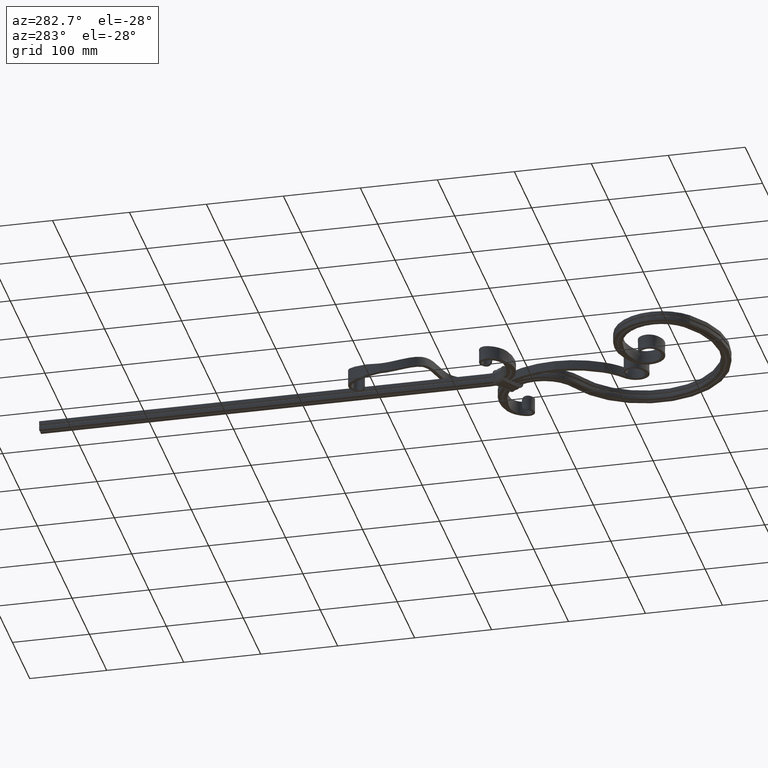
[diagram: clean part render]
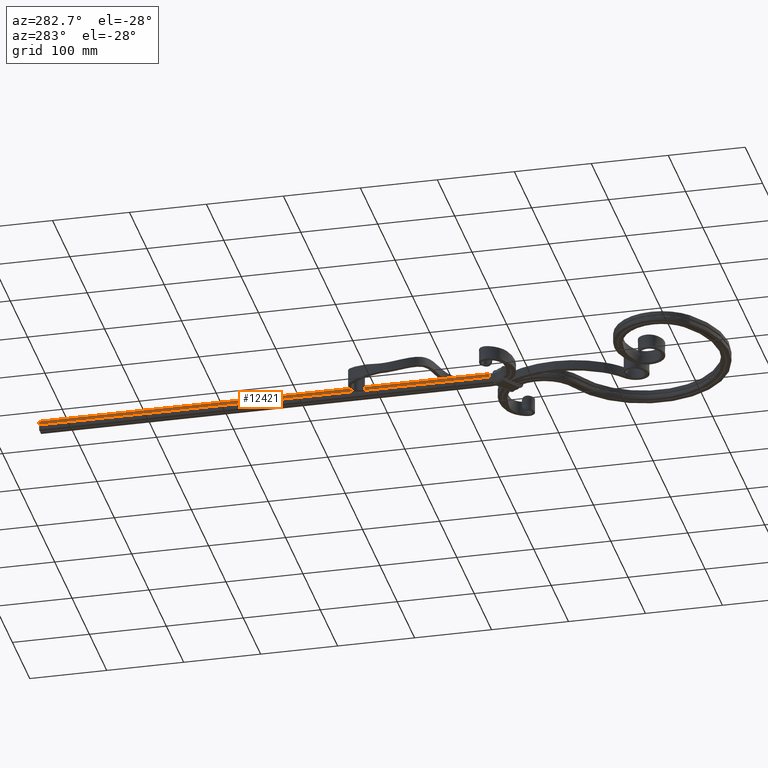
[diagram: same view with one face highlighted and labeled with its STEP entity id]
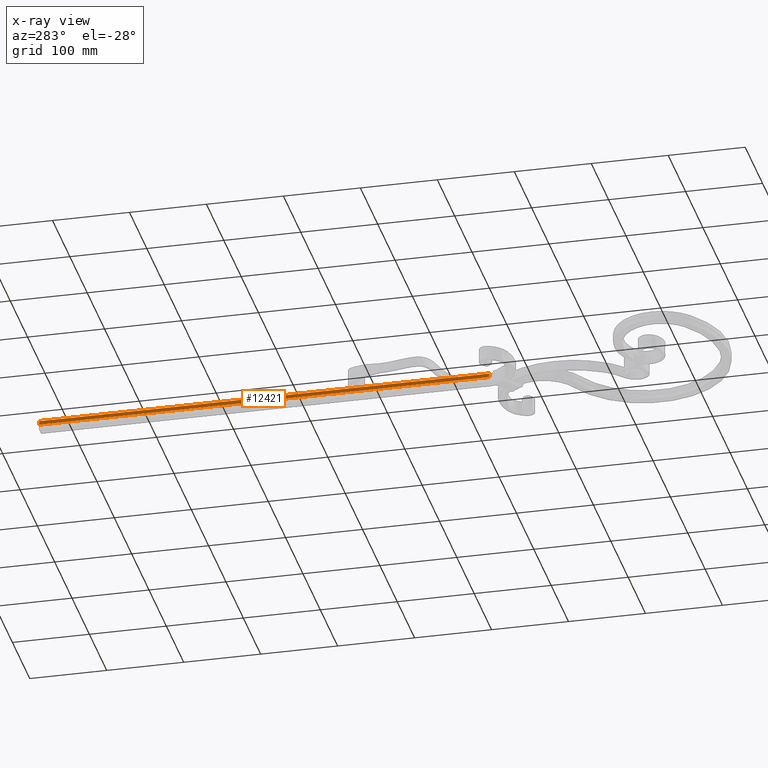
[diagram: x-ray of the same camera — body ghosted, the highlighted face saturated]
A machine part, auxiliary view. The second image highlights one B-rep face of the part: STEP entity #12421.
The next image is the same camera in x-ray: the body ghosted, the highlighted face saturated — about 0% of this face is hidden behind the body in this view.
In plain terms, the highlighted planar face has unit normal (1, 0, -0).
Its self-contained STEP definition (entity closure, byte-faithful):
#536 = CARTESIAN_POINT ( 'NONE',  ( -11.99999999999994493, -135.0000000000023874, 1.000000000000000444 ) ) ;
#2268 = VECTOR ( 'NONE', #4090, 1000.000000000000000 ) ;
#3689 = VERTEX_POINT ( 'NONE', #25239 ) ;
#4011 = CARTESIAN_POINT ( 'NONE',  ( -11.99999999999999822, 450.0000000000000000, 6.000000000000000000 ) ) ;
#4090 = DIRECTION ( 'NONE',  ( -0.000000000000000000, -0.000000000000000000, -1.000000000000000000 ) ) ;
#4770 = VECTOR ( 'NONE', #23629, 1000.000000000000000 ) ;
#4820 = VECTOR ( 'NONE', #28228, 1000.000000000000000 ) ;
#5184 = LINE ( 'NONE', #15309, #27853 ) ;
#5669 = EDGE_CURVE ( 'NONE', #9482, #3689, #14615, .T. ) ;
#6132 = DIRECTION ( 'NONE',  ( 1.000000000000000000, 9.192551753039452997E-17, -0.000000000000000000 ) ) ;
#6820 = LINE ( 'NONE', #19220, #4770 ) ;
#8609 = LINE ( 'NONE', #4011, #4820 ) ;
#8777 = DIRECTION ( 'NONE',  ( 9.101536389147972032E-17, -1.000000000000000000, 0.000000000000000000 ) ) ;
#9482 = VERTEX_POINT ( 'NONE', #10769 ) ;
#10093 = ORIENTED_EDGE ( 'NONE', *, *, #11401, .F. ) ;
#10632 = EDGE_CURVE ( 'NONE', #3689, #17127, #5184, .T. ) ;
#10769 = CARTESIAN_POINT ( 'NONE',  ( -11.99999999999999822, 450.0000000000000000, 6.000000000000000000 ) ) ;
#11401 = EDGE_CURVE ( 'NONE', #9482, #19826, #8609, .T. ) ;
#12421 = ADVANCED_FACE ( 'NONE', ( #21271 ), #26730, .F. ) ;
#13310 = CARTESIAN_POINT ( 'NONE',  ( -11.99999999999999822, 450.0000000000000000, 6.000000000000000000 ) ) ;
#13960 = EDGE_CURVE ( 'NONE', #19826, #17127, #6820, .T. ) ;
#14615 = LINE ( 'NONE', #13310, #2268 ) ;
#15309 = CARTESIAN_POINT ( 'NONE',  ( -11.99999999999999822, 455.8500000000000227, 1.000000000000000444 ) ) ;
#15777 = CARTESIAN_POINT ( 'NONE',  ( -11.99999999999999822, 450.0000000000000000, 6.000000000000000000 ) ) ;
#16035 = ORIENTED_EDGE ( 'NONE', *, *, #13960, .F. ) ;
#16715 = ORIENTED_EDGE ( 'NONE', *, *, #10632, .T. ) ;
#16821 = AXIS2_PLACEMENT_3D ( 'NONE', #15777, #6132, #27851 ) ;
#17127 = VERTEX_POINT ( 'NONE', #536 ) ;
#19220 = CARTESIAN_POINT ( 'NONE',  ( -11.99999999999994493, -135.0000000000023874, 6.000000000000000000 ) ) ;
#19826 = VERTEX_POINT ( 'NONE', #20897 ) ;
#20897 = CARTESIAN_POINT ( 'NONE',  ( -11.99999999999994493, -135.0000000000023874, 6.000000000000000000 ) ) ;
#21271 = FACE_OUTER_BOUND ( 'NONE', #27733, .T. ) ;
#21521 = ORIENTED_EDGE ( 'NONE', *, *, #5669, .T. ) ;
#23629 = DIRECTION ( 'NONE',  ( -0.000000000000000000, -0.000000000000000000, -1.000000000000000000 ) ) ;
#25239 = CARTESIAN_POINT ( 'NONE',  ( -11.99999999999999822, 450.0000000000000000, 1.000000000000000666 ) ) ;
#26730 = PLANE ( 'NONE',  #16821 ) ;
#27733 = EDGE_LOOP ( 'NONE', ( #21521, #16715, #16035, #10093 ) ) ;
#27851 = DIRECTION ( 'NONE',  ( -9.192551753039452997E-17, 1.000000000000000000, 0.000000000000000000 ) ) ;
#27853 = VECTOR ( 'NONE', #8777, 1000.000000000000000 ) ;
#28228 = DIRECTION ( 'NONE',  ( 9.192551753039452997E-17, -1.000000000000000000, 0.000000000000000000 ) ) ;